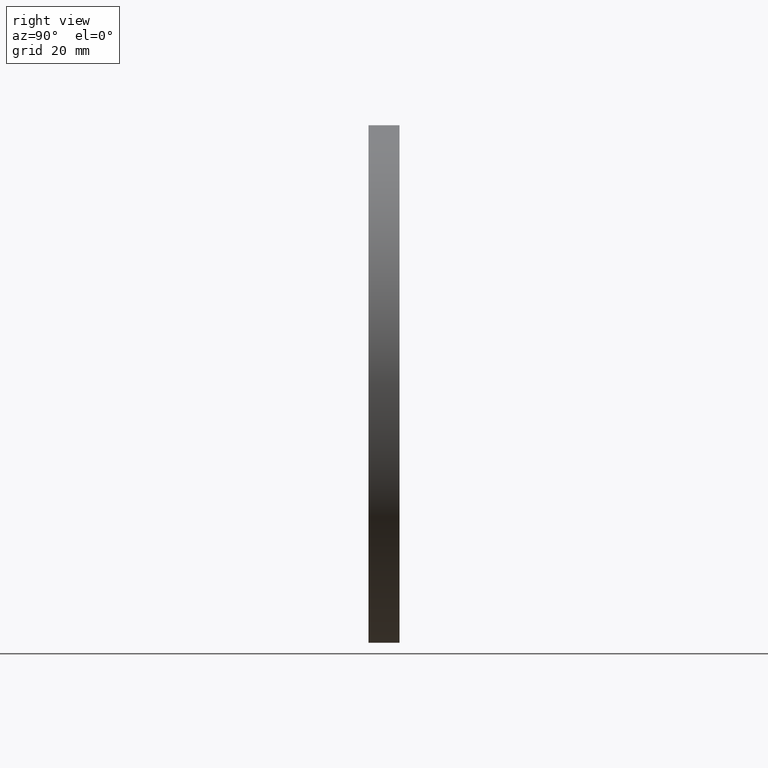
[diagram: clean part render]
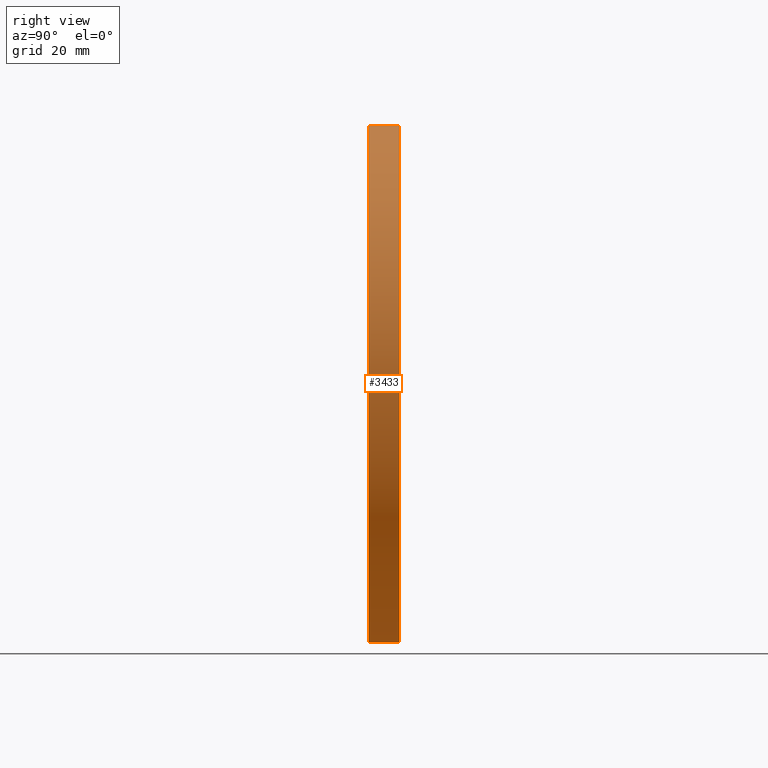
[diagram: same view with one face highlighted and labeled with its STEP entity id]
A machine part, right view. The second image highlights one B-rep face of the part: STEP entity #3433.
In plain terms, the highlighted cylindrical surface (partial cylindrical patch) has radius 50 mm, axis along (-0, -1, -0).
Its self-contained STEP definition (entity closure, byte-faithful):
#462 = VECTOR ( 'NONE', #13812, 1000.000000000000000 ) ;
#900 = ORIENTED_EDGE ( 'NONE', *, *, #7189, .T. ) ;
#1051 = VERTEX_POINT ( 'NONE', #10075 ) ;
#2194 = EDGE_CURVE ( 'NONE', #1051, #10254, #12684, .T. ) ;
#2621 = CYLINDRICAL_SURFACE ( 'NONE', #4357, 50.00000000000000000 ) ;
#2859 = EDGE_LOOP ( 'NONE', ( #14723, #9735, #900, #13489 ) ) ;
#3433 = ADVANCED_FACE ( 'NONE', ( #12302 ), #2621, .T. ) ;
#4357 = AXIS2_PLACEMENT_3D ( 'NONE', #8695, #6011, #6055 ) ;
#5018 = DIRECTION ( 'NONE',  ( 0.000000000000000000, 0.000000000000000000, 1.000000000000000000 ) ) ;
#5570 = CIRCLE ( 'NONE', #11284, 50.00000000000000000 ) ;
#5996 = CARTESIAN_POINT ( 'NONE',  ( 0.000000000000000000, 6.000000000000000000, 0.000000000000000000 ) ) ;
#6011 = DIRECTION ( 'NONE',  ( -0.000000000000000000, -1.000000000000000000, -0.000000000000000000 ) ) ;
#6055 = DIRECTION ( 'NONE',  ( 0.000000000000000000, 0.000000000000000000, -1.000000000000000000 ) ) ;
#6129 = CARTESIAN_POINT ( 'NONE',  ( 0.000000000000000000, 0.000000000000000000, 0.000000000000000000 ) ) ;
#6873 = VERTEX_POINT ( 'NONE', #13109 ) ;
#6984 = CARTESIAN_POINT ( 'NONE',  ( 6.123233995736766085E-15, 6.000000000000000000, 50.00000000000000000 ) ) ;
#7128 = DIRECTION ( 'NONE',  ( 0.000000000000000000, 1.000000000000000000, 0.000000000000000000 ) ) ;
#7189 = EDGE_CURVE ( 'NONE', #10254, #6873, #13637, .T. ) ;
#8394 = CARTESIAN_POINT ( 'NONE',  ( 0.000000000000000000, 6.000000000000000000, -50.00000000000000000 ) ) ;
#8695 = CARTESIAN_POINT ( 'NONE',  ( 0.000000000000000000, 6.000000000000000000, 0.000000000000000000 ) ) ;
#9379 = EDGE_CURVE ( 'NONE', #13678, #6873, #10393, .T. ) ;
#9447 = DIRECTION ( 'NONE',  ( -0.000000000000000000, -1.000000000000000000, -0.000000000000000000 ) ) ;
#9505 = EDGE_CURVE ( 'NONE', #1051, #13678, #5570, .T. ) ;
#9735 = ORIENTED_EDGE ( 'NONE', *, *, #2194, .T. ) ;
#10075 = CARTESIAN_POINT ( 'NONE',  ( 6.123233995736766085E-15, 6.000000000000000000, 50.00000000000000000 ) ) ;
#10254 = VERTEX_POINT ( 'NONE', #12024 ) ;
#10393 = LINE ( 'NONE', #8394, #12867 ) ;
#10662 = DIRECTION ( 'NONE',  ( 0.000000000000000000, 0.000000000000000000, 1.000000000000000000 ) ) ;
#11284 = AXIS2_PLACEMENT_3D ( 'NONE', #5996, #11856, #5018 ) ;
#11856 = DIRECTION ( 'NONE',  ( 0.000000000000000000, 1.000000000000000000, 0.000000000000000000 ) ) ;
#12024 = CARTESIAN_POINT ( 'NONE',  ( 6.123233995736766085E-15, 0.000000000000000000, 50.00000000000000000 ) ) ;
#12302 = FACE_OUTER_BOUND ( 'NONE', #2859, .T. ) ;
#12408 = CARTESIAN_POINT ( 'NONE',  ( 0.000000000000000000, 6.000000000000000000, -50.00000000000000000 ) ) ;
#12684 = LINE ( 'NONE', #6984, #462 ) ;
#12867 = VECTOR ( 'NONE', #9447, 1000.000000000000000 ) ;
#13109 = CARTESIAN_POINT ( 'NONE',  ( 0.000000000000000000, 0.000000000000000000, -50.00000000000000000 ) ) ;
#13489 = ORIENTED_EDGE ( 'NONE', *, *, #9379, .F. ) ;
#13637 = CIRCLE ( 'NONE', #13668, 50.00000000000000000 ) ;
#13668 = AXIS2_PLACEMENT_3D ( 'NONE', #6129, #7128, #10662 ) ;
#13678 = VERTEX_POINT ( 'NONE', #12408 ) ;
#13812 = DIRECTION ( 'NONE',  ( -0.000000000000000000, -1.000000000000000000, -0.000000000000000000 ) ) ;
#14723 = ORIENTED_EDGE ( 'NONE', *, *, #9505, .F. ) ;